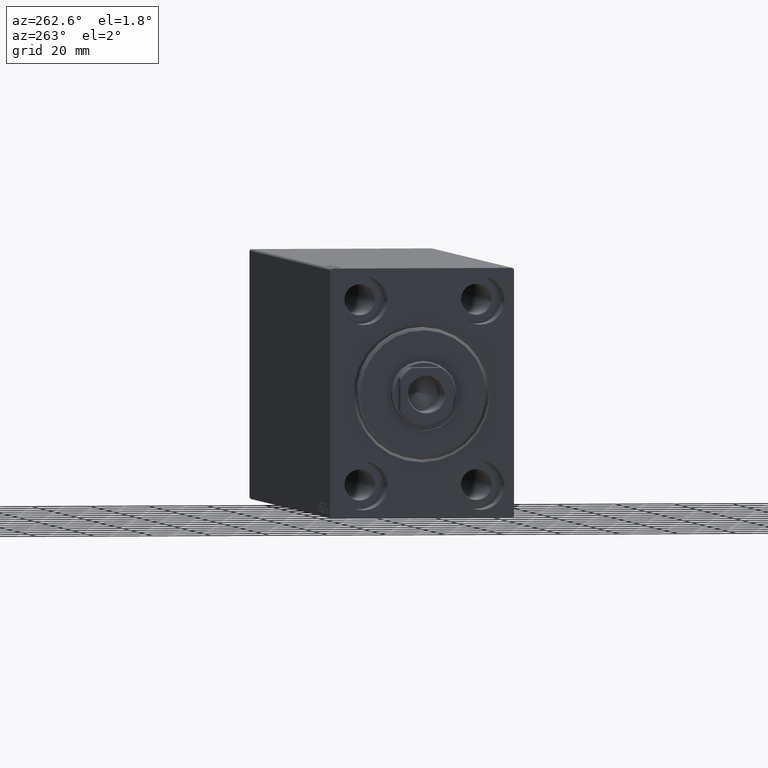
[diagram: clean part render]
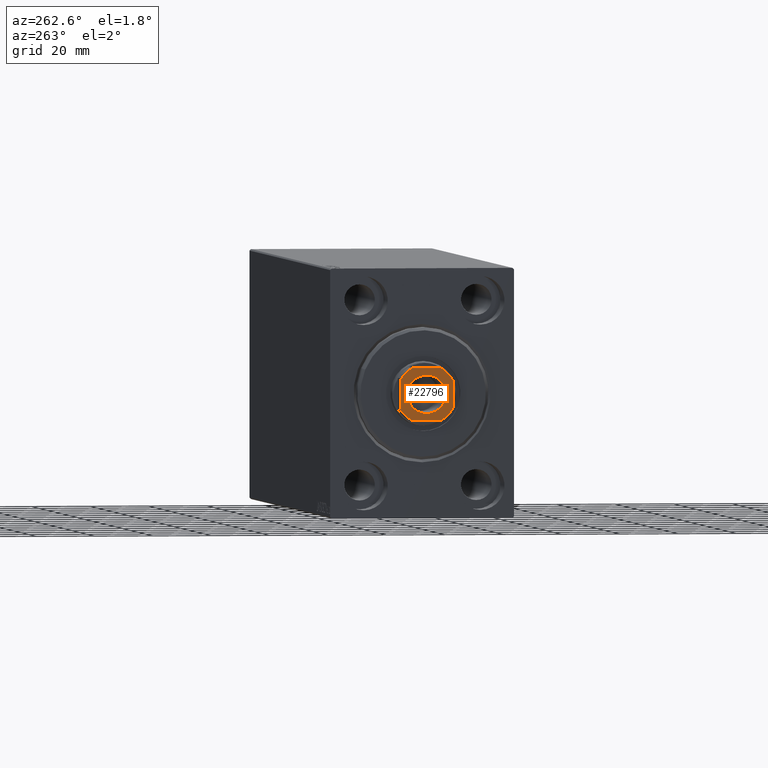
[diagram: same view with one face highlighted and labeled with its STEP entity id]
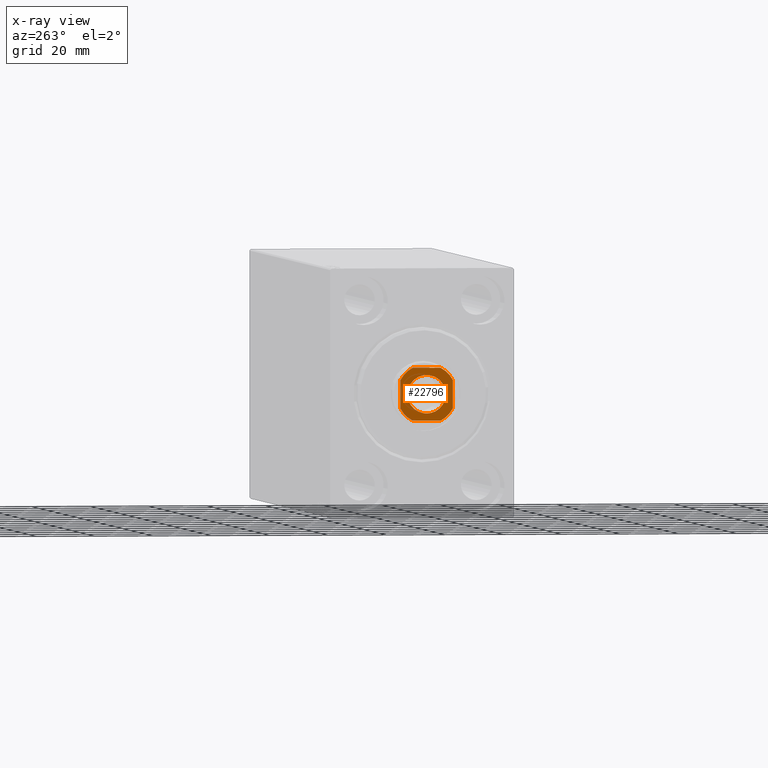
[diagram: x-ray of the same camera — body ghosted, the highlighted face saturated]
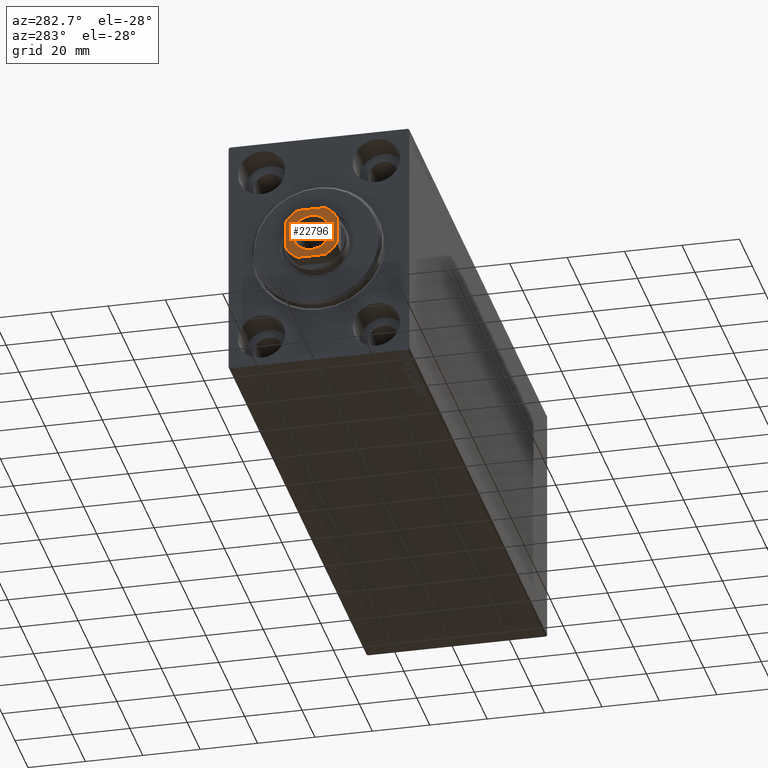
[diagram: same view with one face highlighted and labeled with its STEP entity id]
A machine part, auxiliary view. The second image highlights one B-rep face of the part: STEP entity #22796.
The next image is the same camera in x-ray: the body ghosted, the highlighted face saturated — about 0% of this face is hidden behind the body in this view.
A second angle (auxiliary view) of the same face is appended — the face is thin or edge-on in the first view.
In plain terms, the highlighted planar face has unit normal (-1, 0, 0).
Its self-contained STEP definition (entity closure, byte-faithful):
#40 = VECTOR ( 'NONE', #33054, 1000.000000000000000 ) ;
#592 = LINE ( 'NONE', #26911, #36268 ) ;
#615 = CARTESIAN_POINT ( 'NONE',  ( 9.000000000000001776, -4.799999999999957190, 213.0000000000000284 ) ) ;
#969 = ORIENTED_EDGE ( 'NONE', *, *, #26168, .T. ) ;
#1262 = EDGE_CURVE ( 'NONE', #12731, #4803, #25477, .T. ) ;
#2342 = VERTEX_POINT ( 'NONE', #2597 ) ;
#2597 = CARTESIAN_POINT ( 'NONE',  ( -4.799999999999995381, -9.000000000000001776, 213.0000000000000284 ) ) ;
#3042 = ORIENTED_EDGE ( 'NONE', *, *, #16920, .T. ) ;
#3081 = EDGE_CURVE ( 'NONE', #18651, #2342, #13502, .T. ) ;
#3417 = DIRECTION ( 'NONE',  ( 1.000000000000000000, 0.000000000000000000, 0.000000000000000000 ) ) ;
#3613 = DIRECTION ( 'NONE',  ( 1.000000000000000000, 0.000000000000000000, 0.000000000000000000 ) ) ;
#4125 = DIRECTION ( 'NONE',  ( 1.927470528863119049E-16, -1.000000000000000000, 0.000000000000000000 ) ) ;
#4540 = DIRECTION ( 'NONE',  ( 1.000000000000000000, 0.000000000000000000, 0.000000000000000000 ) ) ;
#4803 = VERTEX_POINT ( 'NONE', #27635 ) ;
#5063 = EDGE_CURVE ( 'NONE', #34861, #14825, #42800, .T. ) ;
#5192 = EDGE_CURVE ( 'NONE', #4803, #12731, #35353, .T. ) ;
#5545 = DIRECTION ( 'NONE',  ( 1.000000000000000000, 0.000000000000000000, 0.000000000000000000 ) ) ;
#5801 = ORIENTED_EDGE ( 'NONE', *, *, #13364, .T. ) ;
#6193 = DIRECTION ( 'NONE',  ( -0.000000000000000000, 0.000000000000000000, 1.000000000000000000 ) ) ;
#6799 = DIRECTION ( 'NONE',  ( -0.000000000000000000, 0.000000000000000000, 1.000000000000000000 ) ) ;
#7332 = VECTOR ( 'NONE', #19691, 1000.000000000000000 ) ;
#7401 = DIRECTION ( 'NONE',  ( 0.000000000000000000, -0.000000000000000000, -1.000000000000000000 ) ) ;
#8649 = EDGE_CURVE ( 'NONE', #14825, #39480, #37566, .T. ) ;
#9245 = DIRECTION ( 'NONE',  ( 1.000000000000000000, 0.000000000000000000, 0.000000000000000000 ) ) ;
#9459 = CARTESIAN_POINT ( 'NONE',  ( -4.799999999999902123, 8.999999999999998224, 213.0000000000000284 ) ) ;
#11333 = CARTESIAN_POINT ( 'NONE',  ( 4.799999999999960743, 8.999999999999998224, 213.0000000000000284 ) ) ;
#12241 = ORIENTED_EDGE ( 'NONE', *, *, #3081, .T. ) ;
#12627 = DIRECTION ( 'NONE',  ( 1.000000000000000000, 0.000000000000000000, 0.000000000000000000 ) ) ;
#12731 = VERTEX_POINT ( 'NONE', #36905 ) ;
#13364 = EDGE_CURVE ( 'NONE', #30770, #34861, #27048, .T. ) ;
#13502 = CIRCLE ( 'NONE', #23266, 10.19999999999999929 ) ;
#13560 = DIRECTION ( 'NONE',  ( -1.000000000000000000, -0.000000000000000000, -0.000000000000000000 ) ) ;
#14240 = DIRECTION ( 'NONE',  ( 0.000000000000000000, -0.000000000000000000, -1.000000000000000000 ) ) ;
#14344 = EDGE_CURVE ( 'NONE', #19728, #18651, #592, .T. ) ;
#14825 = VERTEX_POINT ( 'NONE', #17087 ) ;
#15030 = EDGE_CURVE ( 'NONE', #2342, #30770, #32947, .T. ) ;
#15172 = AXIS2_PLACEMENT_3D ( 'NONE', #35839, #6799, #5545 ) ;
#15884 = DIRECTION ( 'NONE',  ( -0.000000000000000000, 0.000000000000000000, 1.000000000000000000 ) ) ;
#16920 = EDGE_CURVE ( 'NONE', #25422, #19728, #30677, .T. ) ;
#17087 = CARTESIAN_POINT ( 'NONE',  ( 8.999999999999998224, 4.799999999999960743, 213.0000000000000284 ) ) ;
#17147 = CARTESIAN_POINT ( 'NONE',  ( 0.000000000000000000, 0.000000000000000000, 213.0000000000000284 ) ) ;
#17867 = ORIENTED_EDGE ( 'NONE', *, *, #14344, .T. ) ;
#18513 = AXIS2_PLACEMENT_3D ( 'NONE', #24887, #38135, #4540 ) ;
#18651 = VERTEX_POINT ( 'NONE', #34166 ) ;
#19219 = VECTOR ( 'NONE', #13560, 1000.000000000000000 ) ;
#19691 = DIRECTION ( 'NONE',  ( 1.000000000000000000, 0.000000000000000000, 0.000000000000000000 ) ) ;
#19728 = VERTEX_POINT ( 'NONE', #20431 ) ;
#19972 = ORIENTED_EDGE ( 'NONE', *, *, #5063, .T. ) ;
#20341 = FACE_OUTER_BOUND ( 'NONE', #24075, .T. ) ;
#20431 = CARTESIAN_POINT ( 'NONE',  ( -9.000000000000001776, 4.799999999999896794, 213.0000000000000284 ) ) ;
#21610 = EDGE_LOOP ( 'NONE', ( #27395, #30668 ) ) ;
#22796 = ADVANCED_FACE ( 'NONE', ( #40013, #20341 ), #27188, .T. ) ;
#23266 = AXIS2_PLACEMENT_3D ( 'NONE', #40619, #29624, #12627 ) ;
#24075 = EDGE_LOOP ( 'NONE', ( #19972, #28497, #969, #3042, #17867, #12241, #39320, #5801 ) ) ;
#24887 = CARTESIAN_POINT ( 'NONE',  ( 0.000000000000000000, 0.000000000000000000, 213.0000000000000284 ) ) ;
#25422 = VERTEX_POINT ( 'NONE', #9459 ) ;
#25477 = CIRCLE ( 'NONE', #33937, 6.550000000000000711 ) ;
#26168 = EDGE_CURVE ( 'NONE', #39480, #25422, #37187, .T. ) ;
#26911 = CARTESIAN_POINT ( 'NONE',  ( -9.000000000000001776, 8.999999999999998224, 213.0000000000000284 ) ) ;
#27048 = CIRCLE ( 'NONE', #34118, 10.19999999999997975 ) ;
#27188 = PLANE ( 'NONE',  #32820 ) ;
#27395 = ORIENTED_EDGE ( 'NONE', *, *, #1262, .T. ) ;
#27635 = CARTESIAN_POINT ( 'NONE',  ( -6.550000000000000711, 8.021436534415164234E-16, 213.0000000000000284 ) ) ;
#28497 = ORIENTED_EDGE ( 'NONE', *, *, #8649, .T. ) ;
#29624 = DIRECTION ( 'NONE',  ( -0.000000000000000000, 0.000000000000000000, 1.000000000000000000 ) ) ;
#29739 = CARTESIAN_POINT ( 'NONE',  ( 8.999999999999998224, 8.999999999999998224, 213.0000000000000284 ) ) ;
#30668 = ORIENTED_EDGE ( 'NONE', *, *, #5192, .T. ) ;
#30677 = CIRCLE ( 'NONE', #15172, 10.19999999999995133 ) ;
#30770 = VERTEX_POINT ( 'NONE', #32943 ) ;
#31016 = CARTESIAN_POINT ( 'NONE',  ( 0.000000000000000000, 0.000000000000000000, 213.0000000000000284 ) ) ;
#31830 = AXIS2_PLACEMENT_3D ( 'NONE', #17147, #7401, #3417 ) ;
#32820 = AXIS2_PLACEMENT_3D ( 'NONE', #36480, #6193, #34693 ) ;
#32943 = CARTESIAN_POINT ( 'NONE',  ( 4.799999999999956302, -9.000000000000001776, 213.0000000000000284 ) ) ;
#32947 = LINE ( 'NONE', #36053, #7332 ) ;
#33054 = DIRECTION ( 'NONE',  ( -1.927470528863119049E-16, 1.000000000000000000, -0.000000000000000000 ) ) ;
#33320 = CARTESIAN_POINT ( 'NONE',  ( 0.000000000000000000, 0.000000000000000000, 213.0000000000000284 ) ) ;
#33937 = AXIS2_PLACEMENT_3D ( 'NONE', #31016, #14240, #3613 ) ;
#34118 = AXIS2_PLACEMENT_3D ( 'NONE', #33320, #15884, #9245 ) ;
#34166 = CARTESIAN_POINT ( 'NONE',  ( -8.999999999999998224, -4.799999999999999822, 213.0000000000000284 ) ) ;
#34693 = DIRECTION ( 'NONE',  ( 1.000000000000000000, 0.000000000000000000, 0.000000000000000000 ) ) ;
#34861 = VERTEX_POINT ( 'NONE', #615 ) ;
#35353 = CIRCLE ( 'NONE', #31830, 6.550000000000000711 ) ;
#35839 = CARTESIAN_POINT ( 'NONE',  ( 0.000000000000000000, 0.000000000000000000, 213.0000000000000284 ) ) ;
#36053 = CARTESIAN_POINT ( 'NONE',  ( -8.999999999999998224, -9.000000000000001776, 213.0000000000000284 ) ) ;
#36268 = VECTOR ( 'NONE', #4125, 1000.000000000000000 ) ;
#36480 = CARTESIAN_POINT ( 'NONE',  ( 0.000000000000000000, 0.000000000000000000, 213.0000000000000284 ) ) ;
#36905 = CARTESIAN_POINT ( 'NONE',  ( 6.550000000000000711, 0.000000000000000000, 213.0000000000000284 ) ) ;
#37187 = LINE ( 'NONE', #40071, #19219 ) ;
#37566 = CIRCLE ( 'NONE', #18513, 10.19999999999997975 ) ;
#38135 = DIRECTION ( 'NONE',  ( -0.000000000000000000, 0.000000000000000000, 1.000000000000000000 ) ) ;
#39320 = ORIENTED_EDGE ( 'NONE', *, *, #15030, .T. ) ;
#39480 = VERTEX_POINT ( 'NONE', #11333 ) ;
#40013 = FACE_BOUND ( 'NONE', #21610, .T. ) ;
#40071 = CARTESIAN_POINT ( 'NONE',  ( -9.000000000000001776, 8.999999999999998224, 213.0000000000000284 ) ) ;
#40619 = CARTESIAN_POINT ( 'NONE',  ( 0.000000000000000000, 0.000000000000000000, 213.0000000000000284 ) ) ;
#42800 = LINE ( 'NONE', #29739, #40 ) ;